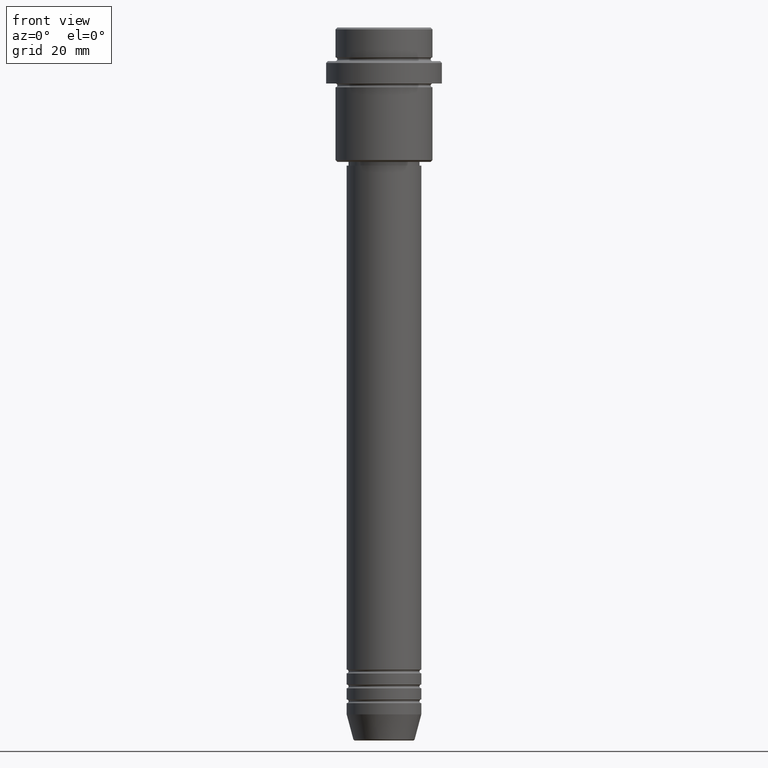
[diagram: clean part render]
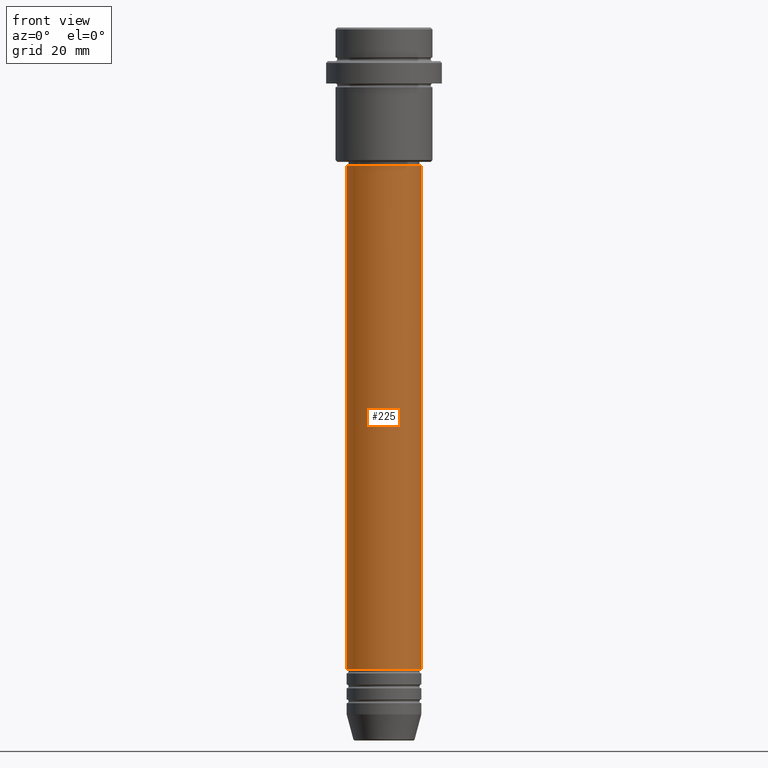
[diagram: same view with one face highlighted and labeled with its STEP entity id]
A machine part, front view. The second image highlights one B-rep face of the part: STEP entity #225.
In plain terms, the highlighted cylindrical surface (partial cylindrical patch) has radius 10 mm, axis along (-0, -0, 1).
Its self-contained STEP definition (entity closure, byte-faithful):
#9 = DIRECTION ( 'NONE',  ( -0.000000000000000000, -0.000000000000000000, 1.000000000000000000 ) ) ;
#14 = DIRECTION ( 'NONE',  ( 1.000000000000000000, 0.000000000000000000, 0.000000000000000000 ) ) ;
#93 = CARTESIAN_POINT ( 'NONE',  ( -10.00000000000000000, 1.224646799147353256E-15, -171.9999999999999147 ) ) ;
#111 = CYLINDRICAL_SURFACE ( 'NONE', #727, 10.00000000000000178 ) ;
#198 = CIRCLE ( 'NONE', #1371, 10.00000000000000000 ) ;
#225 = ADVANCED_FACE ( 'NONE', ( #1276 ), #111, .T. ) ;
#424 = VERTEX_POINT ( 'NONE', #1125 ) ;
#429 = LINE ( 'NONE', #1377, #908 ) ;
#432 = EDGE_CURVE ( 'NONE', #941, #989, #592, .T. ) ;
#477 = CARTESIAN_POINT ( 'NONE',  ( 10.00000000000000178, 0.000000000000000000, 0.000000000000000000 ) ) ;
#508 = DIRECTION ( 'NONE',  ( -0.000000000000000000, -0.000000000000000000, 1.000000000000000000 ) ) ;
#529 = DIRECTION ( 'NONE',  ( 1.000000000000000000, 0.000000000000000000, 0.000000000000000000 ) ) ;
#538 = EDGE_CURVE ( 'NONE', #1334, #941, #198, .T. ) ;
#549 = DIRECTION ( 'NONE',  ( -0.000000000000000000, -0.000000000000000000, 1.000000000000000000 ) ) ;
#556 = EDGE_CURVE ( 'NONE', #1334, #424, #429, .T. ) ;
#592 = LINE ( 'NONE', #477, #884 ) ;
#596 = CARTESIAN_POINT ( 'NONE',  ( 10.00000000000000000, 0.000000000000000000, -171.9999999999999147 ) ) ;
#601 = ORIENTED_EDGE ( 'NONE', *, *, #556, .F. ) ;
#611 = CIRCLE ( 'NONE', #1091, 10.00000000000000178 ) ;
#649 = CARTESIAN_POINT ( 'NONE',  ( 0.000000000000000000, 0.000000000000000000, 0.000000000000000000 ) ) ;
#727 = AXIS2_PLACEMENT_3D ( 'NONE', #649, #549, #998 ) ;
#728 = EDGE_CURVE ( 'NONE', #424, #989, #611, .T. ) ;
#756 = CARTESIAN_POINT ( 'NONE',  ( 10.00000000000000178, 0.000000000000000000, -37.00000000000001421 ) ) ;
#826 = EDGE_LOOP ( 'NONE', ( #601, #838, #1244, #1318 ) ) ;
#838 = ORIENTED_EDGE ( 'NONE', *, *, #538, .T. ) ;
#884 = VECTOR ( 'NONE', #916, 1000.000000000000000 ) ;
#908 = VECTOR ( 'NONE', #508, 1000.000000000000000 ) ;
#916 = DIRECTION ( 'NONE',  ( -0.000000000000000000, -0.000000000000000000, 1.000000000000000000 ) ) ;
#941 = VERTEX_POINT ( 'NONE', #596 ) ;
#972 = DIRECTION ( 'NONE',  ( -0.000000000000000000, -0.000000000000000000, 1.000000000000000000 ) ) ;
#989 = VERTEX_POINT ( 'NONE', #756 ) ;
#998 = DIRECTION ( 'NONE',  ( 1.000000000000000000, 0.000000000000000000, 0.000000000000000000 ) ) ;
#1009 = CARTESIAN_POINT ( 'NONE',  ( 0.000000000000000000, 0.000000000000000000, -37.00000000000001421 ) ) ;
#1091 = AXIS2_PLACEMENT_3D ( 'NONE', #1009, #9, #14 ) ;
#1125 = CARTESIAN_POINT ( 'NONE',  ( -10.00000000000000178, 1.224646799147353454E-15, -37.00000000000001421 ) ) ;
#1244 = ORIENTED_EDGE ( 'NONE', *, *, #432, .T. ) ;
#1276 = FACE_OUTER_BOUND ( 'NONE', #826, .T. ) ;
#1318 = ORIENTED_EDGE ( 'NONE', *, *, #728, .F. ) ;
#1334 = VERTEX_POINT ( 'NONE', #93 ) ;
#1371 = AXIS2_PLACEMENT_3D ( 'NONE', #1402, #972, #529 ) ;
#1377 = CARTESIAN_POINT ( 'NONE',  ( -10.00000000000000178, 1.224646799147353454E-15, 0.000000000000000000 ) ) ;
#1402 = CARTESIAN_POINT ( 'NONE',  ( 0.000000000000000000, 0.000000000000000000, -171.9999999999999147 ) ) ;